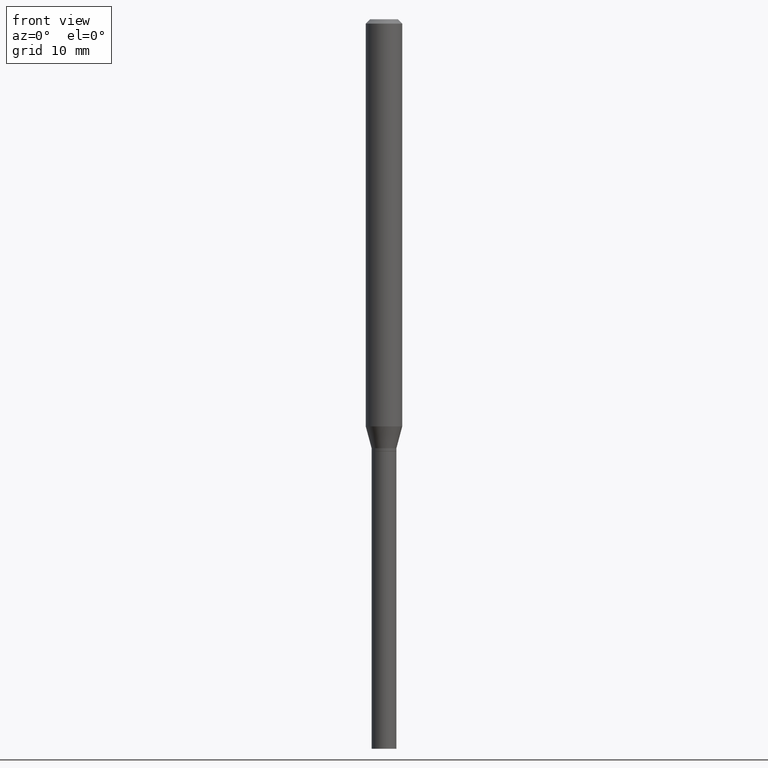
[diagram: clean part render]
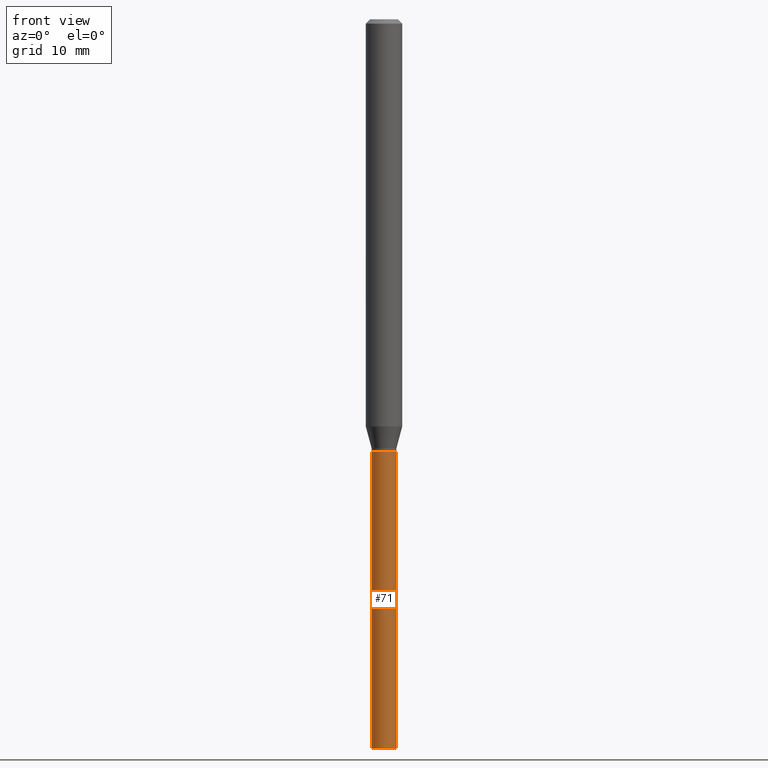
[diagram: same view with one face highlighted and labeled with its STEP entity id]
A machine part, front view. The second image highlights one B-rep face of the part: STEP entity #71.
In plain terms, the highlighted cylindrical surface (edge-blend (fillet) strip) has radius 1.0795 mm, axis along (-0, 0, 1).
Its self-contained STEP definition (entity closure, byte-faithful):
#4 = CIRCLE ( 'NONE', #323, 0.04249999999999999611 ) ;
#6 = CARTESIAN_POINT ( 'NONE',  ( 3.619293833154002365E-29, -5.167392381487854879E-15, -1.479999999999999982 ) ) ;
#9 = CARTESIAN_POINT ( 'NONE',  ( 6.113672015462842613E-29, -8.728703347107864943E-15, -2.500000000000000000 ) ) ;
#30 = CARTESIAN_POINT ( 'NONE',  ( -0.04249999999999999611, -6.646067201599817852E-15, -1.479999999999999982 ) ) ;
#43 = AXIS2_PLACEMENT_3D ( 'NONE', #276, #274, #77 ) ;
#44 = DIRECTION ( 'NONE',  ( -2.445468806185136877E-29, 3.491481338843145188E-15, 1.000000000000000000 ) ) ;
#64 = CARTESIAN_POINT ( 'NONE',  ( 0.04249999999999999611, -2.967759138016663549E-16, 2.072375129713272502E-30 ) ) ;
#71 = ADVANCED_FACE ( 'NONE', ( #154 ), #307, .T. ) ;
#77 = DIRECTION ( 'NONE',  ( 1.000000000000000000, -6.982962677686267499E-15, 4.876176775795935793E-29 ) ) ;
#79 = LINE ( 'NONE', #196, #331 ) ;
#92 = EDGE_LOOP ( 'NONE', ( #364, #351, #418, #354 ) ) ;
#96 = EDGE_CURVE ( 'NONE', #172, #325, #79, .T. ) ;
#98 = VERTEX_POINT ( 'NONE', #245 ) ;
#100 = DIRECTION ( 'NONE',  ( 1.000000000000000000, -6.982962677686276177E-15, 0.000000000000000000 ) ) ;
#111 = DIRECTION ( 'NONE',  ( -2.445468806185136597E-29, 3.491481338843145583E-15, 1.000000000000000000 ) ) ;
#113 = CARTESIAN_POINT ( 'NONE',  ( -0.04249999999999999611, -6.646067201599817852E-15, -2.500000000000000000 ) ) ;
#121 = EDGE_CURVE ( 'NONE', #325, #98, #425, .T. ) ;
#145 = EDGE_CURVE ( 'NONE', #247, #98, #169, .T. ) ;
#146 = AXIS2_PLACEMENT_3D ( 'NONE', #6, #152, #100 ) ;
#152 = DIRECTION ( 'NONE',  ( -2.445468806185136597E-29, 3.491481338843145583E-15, 1.000000000000000000 ) ) ;
#154 = FACE_OUTER_BOUND ( 'NONE', #92, .T. ) ;
#169 = LINE ( 'NONE', #64, #315 ) ;
#172 = VERTEX_POINT ( 'NONE', #113 ) ;
#196 = CARTESIAN_POINT ( 'NONE',  ( -0.04249999999999999611, 3.019806626980425514E-16, -2.090547413358334859E-30 ) ) ;
#217 = DIRECTION ( 'NONE',  ( -2.445468806185136877E-29, 3.491481338843145188E-15, 1.000000000000000000 ) ) ;
#245 = CARTESIAN_POINT ( 'NONE',  ( 0.04249999999999999611, -5.464168295289522318E-15, -1.479999999999999982 ) ) ;
#247 = VERTEX_POINT ( 'NONE', #254 ) ;
#254 = CARTESIAN_POINT ( 'NONE',  ( 0.04249999999999999611, -9.025479260909530016E-15, -2.500000000000000000 ) ) ;
#274 = DIRECTION ( 'NONE',  ( -2.445468806185136597E-29, 3.491481338843145583E-15, 1.000000000000000000 ) ) ;
#276 = CARTESIAN_POINT ( 'NONE',  ( 0.000000000000000000, 0.000000000000000000, 0.000000000000000000 ) ) ;
#290 = EDGE_CURVE ( 'NONE', #172, #247, #4, .T. ) ;
#307 = CYLINDRICAL_SURFACE ( 'NONE', #43, 0.04249999999999999611 ) ;
#315 = VECTOR ( 'NONE', #217, 39.37007874015748143 ) ;
#317 = DIRECTION ( 'NONE',  ( 1.000000000000000000, -6.982962677686254089E-15, 0.000000000000000000 ) ) ;
#323 = AXIS2_PLACEMENT_3D ( 'NONE', #9, #111, #317 ) ;
#325 = VERTEX_POINT ( 'NONE', #30 ) ;
#331 = VECTOR ( 'NONE', #44, 39.37007874015748143 ) ;
#351 = ORIENTED_EDGE ( 'NONE', *, *, #290, .T. ) ;
#354 = ORIENTED_EDGE ( 'NONE', *, *, #121, .F. ) ;
#364 = ORIENTED_EDGE ( 'NONE', *, *, #96, .F. ) ;
#418 = ORIENTED_EDGE ( 'NONE', *, *, #145, .T. ) ;
#425 = CIRCLE ( 'NONE', #146, 0.04249999999999999611 ) ;